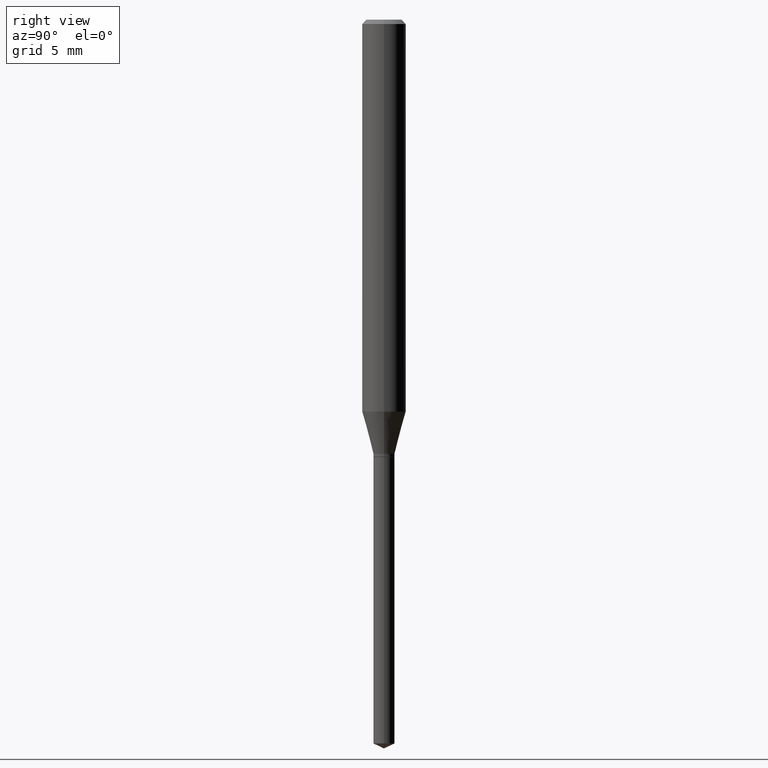
[diagram: clean part render]
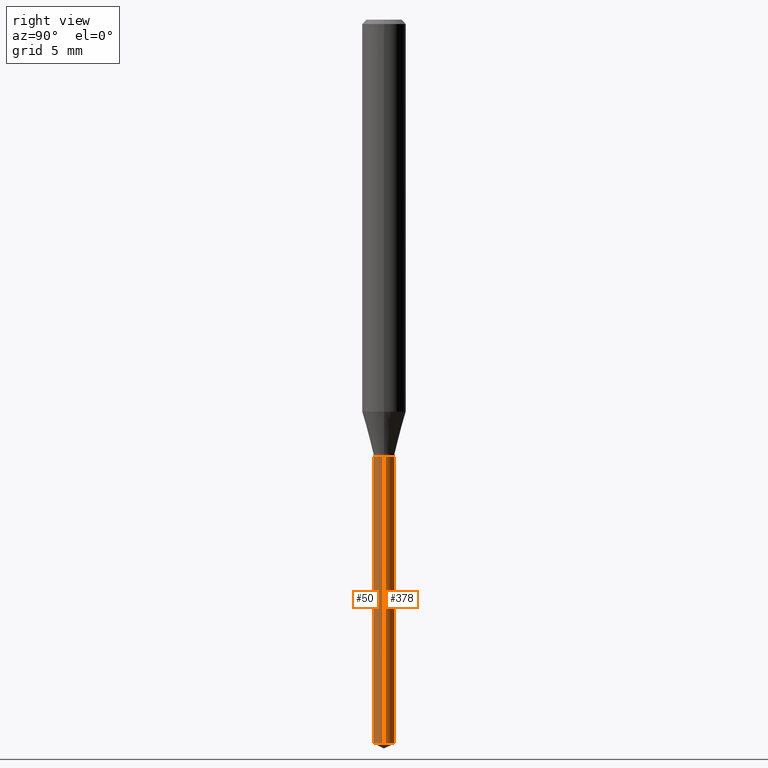
[diagram: same view with one multi-face feature highlighted, each face labeled with its STEP entity id]
A machine part, right view. The highlighted faces form ONE feature: a constant-radius fillet chain: 2 tangent blend faces with common blend radius 0.7252 mm. The faces share edges in the B-rep.
Their STEP definitions:
[1] entity #378 (Cylinder):
#8 = ORIENTED_EDGE ( 'NONE', *, *, #225, .T. ) ;
#10 = DIRECTION ( 'NONE',  ( 1.000000000000000000, -6.982962677686259611E-15, 0.000000000000000000 ) ) ;
#18 = ORIENTED_EDGE ( 'NONE', *, *, #256, .F. ) ;
#61 = VERTEX_POINT ( 'NONE', #178 ) ;
#65 = VECTOR ( 'NONE', #311, 39.37007874015748143 ) ;
#104 = CIRCLE ( 'NONE', #217, 0.02854999999999999899 ) ;
#115 = CARTESIAN_POINT ( 'NONE',  ( 0.02854999999999999205, -7.027607957537443079E-15, -1.955686916359674843 ) ) ;
#165 = DIRECTION ( 'NONE',  ( -2.445468806185136877E-29, 3.491481338843145188E-15, 1.000000000000000000 ) ) ;
#167 = EDGE_LOOP ( 'NONE', ( #8, #385, #18, #393 ) ) ;
#175 = CIRCLE ( 'NONE', #407, 0.02854999999999999899 ) ;
#176 = FACE_OUTER_BOUND ( 'NONE', #167, .T. ) ;
#178 = CARTESIAN_POINT ( 'NONE',  ( -0.02854999999999999899, -5.274029410473772051E-15, -1.181600000000000206 ) ) ;
#191 = CARTESIAN_POINT ( 'NONE',  ( 4.782571348621985160E-29, -6.828244373089501061E-15, -1.955686916359674843 ) ) ;
#201 = DIRECTION ( 'NONE',  ( -2.445468806185136597E-29, 3.491481338843145583E-15, 1.000000000000000000 ) ) ;
#209 = LINE ( 'NONE', #215, #337 ) ;
#215 = CARTESIAN_POINT ( 'NONE',  ( 0.02854999999999999899, -4.324897934425003335E-15, -1.181599999999999984 ) ) ;
#217 = AXIS2_PLACEMENT_3D ( 'NONE', #191, #245, #303 ) ;
#225 = EDGE_CURVE ( 'NONE', #248, #317, #104, .T. ) ;
#236 = EDGE_CURVE ( 'NONE', #317, #61, #386, .T. ) ;
#245 = DIRECTION ( 'NONE',  ( -2.445468806185136597E-29, 3.491481338843145583E-15, 1.000000000000000000 ) ) ;
#248 = VERTEX_POINT ( 'NONE', #115 ) ;
#256 = EDGE_CURVE ( 'NONE', #321, #61, #175, .T. ) ;
#275 = CARTESIAN_POINT ( 'NONE',  ( -0.02854999999999999205, -6.625384422029991923E-15, -1.955686916359674843 ) ) ;
#277 = CARTESIAN_POINT ( 'NONE',  ( 2.889565941388357678E-29, -4.125534349977061317E-15, -1.181600000000000206 ) ) ;
#303 = DIRECTION ( 'NONE',  ( 1.000000000000000000, -6.982962677686259611E-15, 0.000000000000000000 ) ) ;
#304 = AXIS2_PLACEMENT_3D ( 'NONE', #462, #392, #326 ) ;
#311 = DIRECTION ( 'NONE',  ( -2.445468806185136877E-29, 3.491481338843145188E-15, 1.000000000000000000 ) ) ;
#313 = CARTESIAN_POINT ( 'NONE',  ( 0.02854999999999999899, -4.324897934425004124E-15, -1.181600000000000206 ) ) ;
#317 = VERTEX_POINT ( 'NONE', #275 ) ;
#321 = VERTEX_POINT ( 'NONE', #313 ) ;
#326 = DIRECTION ( 'NONE',  ( 1.000000000000000000, -6.982962677686259611E-15, 0.000000000000000000 ) ) ;
#329 = EDGE_CURVE ( 'NONE', #248, #321, #209, .T. ) ;
#337 = VECTOR ( 'NONE', #165, 39.37007874015748143 ) ;
#378 = ADVANCED_FACE ( 'NONE', ( #176 ), #429, .T. ) ;
#385 = ORIENTED_EDGE ( 'NONE', *, *, #236, .T. ) ;
#386 = LINE ( 'NONE', #451, #65 ) ;
#392 = DIRECTION ( 'NONE',  ( -2.445468806185136597E-29, 3.491481338843145583E-15, 1.000000000000000000 ) ) ;
#393 = ORIENTED_EDGE ( 'NONE', *, *, #329, .F. ) ;
#407 = AXIS2_PLACEMENT_3D ( 'NONE', #277, #201, #10 ) ;
#429 = CYLINDRICAL_SURFACE ( 'NONE', #304, 0.02854999999999999899 ) ;
#451 = CARTESIAN_POINT ( 'NONE',  ( -0.02854999999999999899, -3.922674398917552179E-15, -1.181599999999999984 ) ) ;
#462 = CARTESIAN_POINT ( 'NONE',  ( 2.889565941388357118E-29, -4.125534349977060528E-15, -1.181599999999999984 ) ) ;
[2] entity #50 (Cylinder):
#12 = ORIENTED_EDGE ( 'NONE', *, *, #236, .F. ) ;
#13 = AXIS2_PLACEMENT_3D ( 'NONE', #381, #112, #45 ) ;
#38 = FACE_OUTER_BOUND ( 'NONE', #164, .T. ) ;
#45 = DIRECTION ( 'NONE',  ( 1.000000000000000000, -6.982962677686259611E-15, 0.000000000000000000 ) ) ;
#50 = ADVANCED_FACE ( 'NONE', ( #38 ), #221, .T. ) ;
#61 = VERTEX_POINT ( 'NONE', #178 ) ;
#65 = VECTOR ( 'NONE', #311, 39.37007874015748143 ) ;
#112 = DIRECTION ( 'NONE',  ( -2.445468806185136597E-29, 3.491481338843145583E-15, 1.000000000000000000 ) ) ;
#115 = CARTESIAN_POINT ( 'NONE',  ( 0.02854999999999999205, -7.027607957537443079E-15, -1.955686916359674843 ) ) ;
#158 = ORIENTED_EDGE ( 'NONE', *, *, #329, .T. ) ;
#164 = EDGE_LOOP ( 'NONE', ( #12, #200, #158, #292 ) ) ;
#165 = DIRECTION ( 'NONE',  ( -2.445468806185136877E-29, 3.491481338843145188E-15, 1.000000000000000000 ) ) ;
#178 = CARTESIAN_POINT ( 'NONE',  ( -0.02854999999999999899, -5.274029410473772051E-15, -1.181600000000000206 ) ) ;
#182 = DIRECTION ( 'NONE',  ( -2.445468806185136597E-29, 3.491481338843145583E-15, 1.000000000000000000 ) ) ;
#188 = CIRCLE ( 'NONE', #461, 0.02854999999999999899 ) ;
#200 = ORIENTED_EDGE ( 'NONE', *, *, #357, .T. ) ;
#209 = LINE ( 'NONE', #215, #337 ) ;
#213 = EDGE_CURVE ( 'NONE', #61, #321, #416, .T. ) ;
#215 = CARTESIAN_POINT ( 'NONE',  ( 0.02854999999999999899, -4.324897934425003335E-15, -1.181599999999999984 ) ) ;
#221 = CYLINDRICAL_SURFACE ( 'NONE', #232, 0.02854999999999999899 ) ;
#232 = AXIS2_PLACEMENT_3D ( 'NONE', #293, #182, #361 ) ;
#236 = EDGE_CURVE ( 'NONE', #317, #61, #386, .T. ) ;
#248 = VERTEX_POINT ( 'NONE', #115 ) ;
#249 = DIRECTION ( 'NONE',  ( -2.445468806185136597E-29, 3.491481338843145583E-15, 1.000000000000000000 ) ) ;
#255 = DIRECTION ( 'NONE',  ( 1.000000000000000000, -6.982962677686259611E-15, 0.000000000000000000 ) ) ;
#275 = CARTESIAN_POINT ( 'NONE',  ( -0.02854999999999999205, -6.625384422029991923E-15, -1.955686916359674843 ) ) ;
#292 = ORIENTED_EDGE ( 'NONE', *, *, #213, .F. ) ;
#293 = CARTESIAN_POINT ( 'NONE',  ( 2.889565941388357118E-29, -4.125534349977060528E-15, -1.181599999999999984 ) ) ;
#311 = DIRECTION ( 'NONE',  ( -2.445468806185136877E-29, 3.491481338843145188E-15, 1.000000000000000000 ) ) ;
#313 = CARTESIAN_POINT ( 'NONE',  ( 0.02854999999999999899, -4.324897934425004124E-15, -1.181600000000000206 ) ) ;
#317 = VERTEX_POINT ( 'NONE', #275 ) ;
#321 = VERTEX_POINT ( 'NONE', #313 ) ;
#329 = EDGE_CURVE ( 'NONE', #248, #321, #209, .T. ) ;
#337 = VECTOR ( 'NONE', #165, 39.37007874015748143 ) ;
#357 = EDGE_CURVE ( 'NONE', #317, #248, #188, .T. ) ;
#361 = DIRECTION ( 'NONE',  ( 1.000000000000000000, -6.982962677686259611E-15, 0.000000000000000000 ) ) ;
#381 = CARTESIAN_POINT ( 'NONE',  ( 2.889565941388357678E-29, -4.125534349977061317E-15, -1.181600000000000206 ) ) ;
#386 = LINE ( 'NONE', #451, #65 ) ;
#416 = CIRCLE ( 'NONE', #13, 0.02854999999999999899 ) ;
#434 = CARTESIAN_POINT ( 'NONE',  ( 4.782571348621985160E-29, -6.828244373089501061E-15, -1.955686916359674843 ) ) ;
#451 = CARTESIAN_POINT ( 'NONE',  ( -0.02854999999999999899, -3.922674398917552179E-15, -1.181599999999999984 ) ) ;
#461 = AXIS2_PLACEMENT_3D ( 'NONE', #434, #249, #255 ) ;